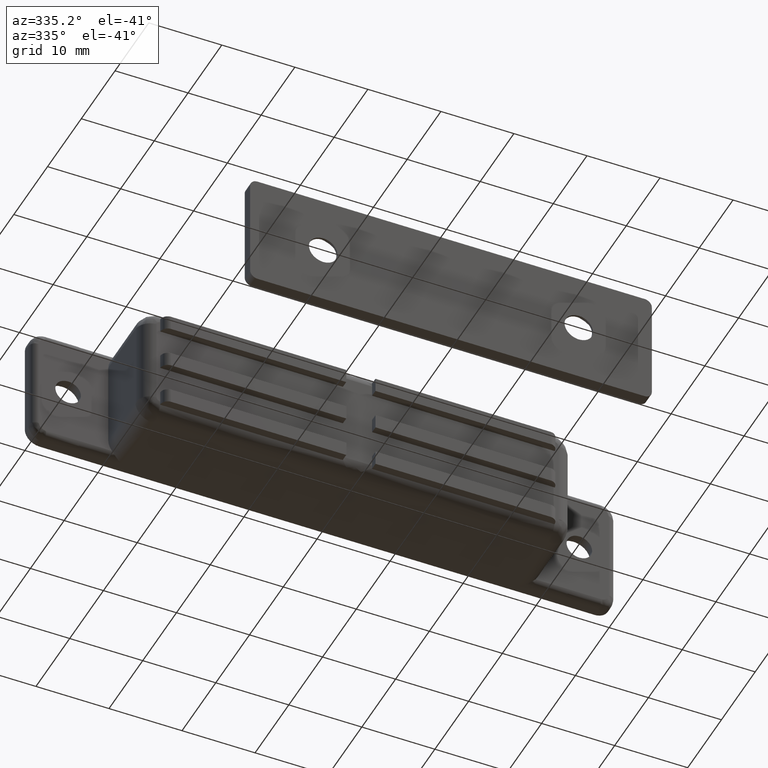
[diagram: clean part render]
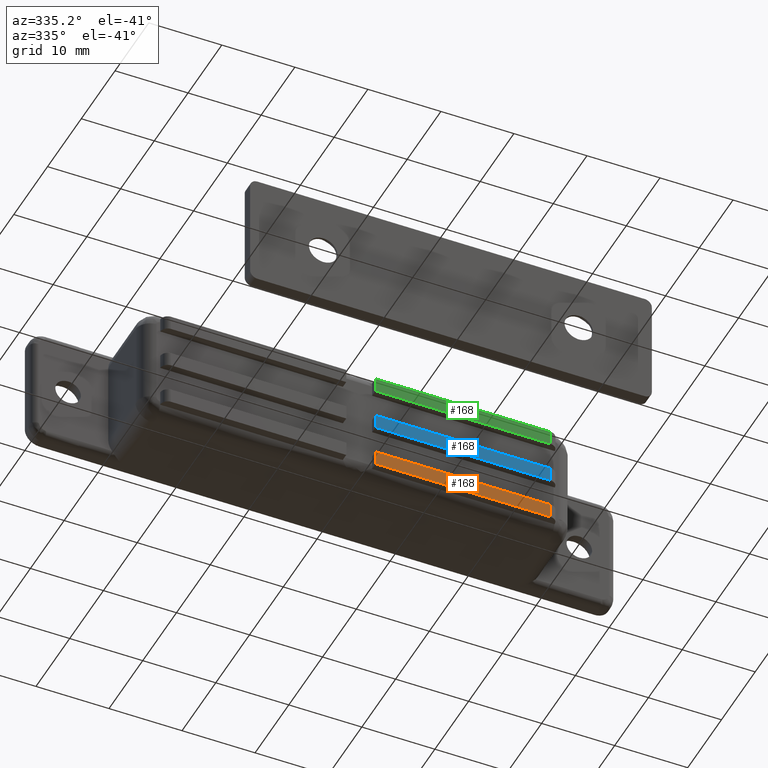
[diagram: same view with three faces highlighted in distinct colors, each labeled with its STEP entity id]
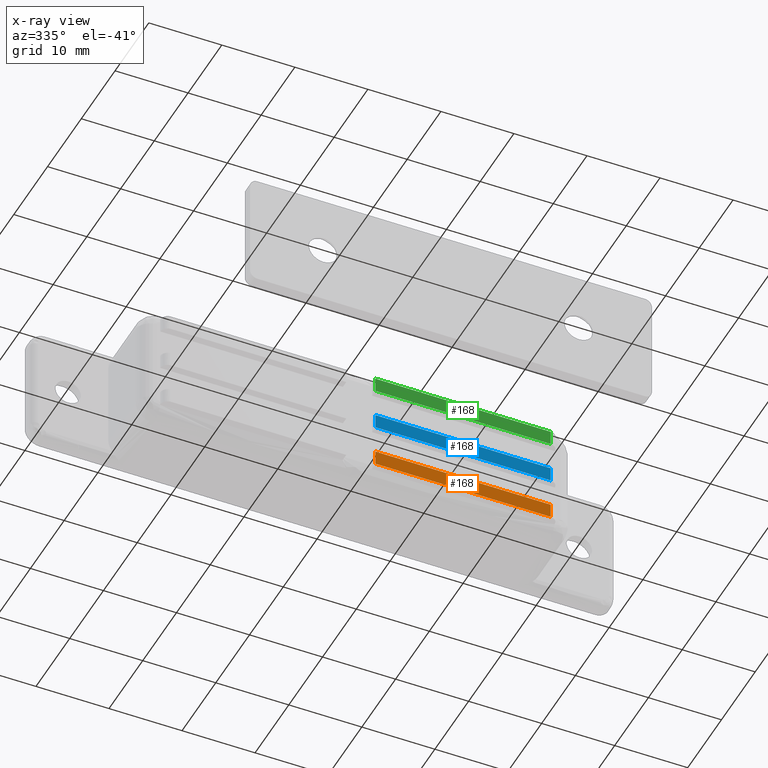
[diagram: x-ray of the same camera — body ghosted, the three highlighted faces saturated]
A machine part, auxiliary view with three faces highlighted in distinct colors.
The next image is the same camera in x-ray (body ghosted, the three faces saturated) — at least one of them is partly hidden behind the body in this view.
Their STEP definitions:

[orange] entity #168 — the highlighted face is a freeform B-spline surface patch.
#60=CARTESIAN_POINT('',(-26.000003000000000,-13.0,7.0));
#61=VERTEX_POINT('',#60);
#82=CARTESIAN_POINT('',(-26.000003000000000,-13.0,5.0));
#83=VERTEX_POINT('',#82);
#97=CARTESIAN_POINT('',(-26.000003000000000,-13.0,7.0));
#98=CARTESIAN_POINT('',(-26.000003000000000,-13.0,5.0));
#99=QUASI_UNIFORM_CURVE('',1,(#97,#98),.UNSPECIFIED.,.F.,.U.);
#100=EDGE_CURVE('',#61,#83,#99,.T.);
#141=CARTESIAN_POINT('',(-27.198804004512770,-13.0,7.099899996123613));
#142=CARTESIAN_POINT('',(-0.801199210063983,-13.0,7.099899996123613));
#143=CARTESIAN_POINT('',(-27.198804004512770,-13.0,4.900099950232208));
#144=CARTESIAN_POINT('',(-0.801199210063983,-13.0,4.900099950232208));
#145=B_SPLINE_SURFACE_WITH_KNOTS('',1,1,((#141,#143),(#142,#144)),.UNSPECIFIED.,.F.,.F.,.U.,(2,2),(2,2),(0.0,26.397604794448782),(0.0,2.199800045891405),.UNSPECIFIED.);
#146=CARTESIAN_POINT('',(-2.0,-13.0,7.0));
#147=VERTEX_POINT('',#146);
#148=CARTESIAN_POINT('',(-2.0,-13.0,7.0));
#149=CARTESIAN_POINT('',(-26.000003000000000,-13.0,7.0));
#150=QUASI_UNIFORM_CURVE('',1,(#148,#149),.UNSPECIFIED.,.F.,.U.);
#151=EDGE_CURVE('',#147,#61,#150,.T.);
#152=ORIENTED_EDGE('',*,*,#151,.T.);
#153=ORIENTED_EDGE('',*,*,#100,.T.);
#154=CARTESIAN_POINT('',(-2.0,-13.0,5.0));
#155=VERTEX_POINT('',#154);
#156=CARTESIAN_POINT('',(-26.000003000000000,-13.0,5.0));
#157=CARTESIAN_POINT('',(-2.0,-13.0,5.0));
#158=QUASI_UNIFORM_CURVE('',1,(#156,#157),.UNSPECIFIED.,.F.,.U.);
#159=EDGE_CURVE('',#83,#155,#158,.T.);
#160=ORIENTED_EDGE('',*,*,#159,.T.);
#161=CARTESIAN_POINT('',(-2.0,-13.0,5.0));
#162=CARTESIAN_POINT('',(-2.0,-13.0,7.0));
#163=QUASI_UNIFORM_CURVE('',1,(#161,#162),.UNSPECIFIED.,.F.,.U.);
#164=EDGE_CURVE('',#155,#147,#163,.T.);
#165=ORIENTED_EDGE('',*,*,#164,.T.);
#166=EDGE_LOOP('',(#152,#153,#160,#165));
#167=FACE_OUTER_BOUND('',#166,.T.);
#168=ADVANCED_FACE('',(#167),#145,.F.);

[blue] entity #168 — the highlighted face is a freeform B-spline surface patch.
#60=CARTESIAN_POINT('',(-26.000003000000000,-13.0,7.0));
#61=VERTEX_POINT('',#60);
#82=CARTESIAN_POINT('',(-26.000003000000000,-13.0,5.0));
#83=VERTEX_POINT('',#82);
#97=CARTESIAN_POINT('',(-26.000003000000000,-13.0,7.0));
#98=CARTESIAN_POINT('',(-26.000003000000000,-13.0,5.0));
#99=QUASI_UNIFORM_CURVE('',1,(#97,#98),.UNSPECIFIED.,.F.,.U.);
#100=EDGE_CURVE('',#61,#83,#99,.T.);
#141=CARTESIAN_POINT('',(-27.198804004512770,-13.0,7.099899996123613));
#142=CARTESIAN_POINT('',(-0.801199210063983,-13.0,7.099899996123613));
#143=CARTESIAN_POINT('',(-27.198804004512770,-13.0,4.900099950232208));
#144=CARTESIAN_POINT('',(-0.801199210063983,-13.0,4.900099950232208));
#145=B_SPLINE_SURFACE_WITH_KNOTS('',1,1,((#141,#143),(#142,#144)),.UNSPECIFIED.,.F.,.F.,.U.,(2,2),(2,2),(0.0,26.397604794448782),(0.0,2.199800045891405),.UNSPECIFIED.);
#146=CARTESIAN_POINT('',(-2.0,-13.0,7.0));
#147=VERTEX_POINT('',#146);
#148=CARTESIAN_POINT('',(-2.0,-13.0,7.0));
#149=CARTESIAN_POINT('',(-26.000003000000000,-13.0,7.0));
#150=QUASI_UNIFORM_CURVE('',1,(#148,#149),.UNSPECIFIED.,.F.,.U.);
#151=EDGE_CURVE('',#147,#61,#150,.T.);
#152=ORIENTED_EDGE('',*,*,#151,.T.);
#153=ORIENTED_EDGE('',*,*,#100,.T.);
#154=CARTESIAN_POINT('',(-2.0,-13.0,5.0));
#155=VERTEX_POINT('',#154);
#156=CARTESIAN_POINT('',(-26.000003000000000,-13.0,5.0));
#157=CARTESIAN_POINT('',(-2.0,-13.0,5.0));
#158=QUASI_UNIFORM_CURVE('',1,(#156,#157),.UNSPECIFIED.,.F.,.U.);
#159=EDGE_CURVE('',#83,#155,#158,.T.);
#160=ORIENTED_EDGE('',*,*,#159,.T.);
#161=CARTESIAN_POINT('',(-2.0,-13.0,5.0));
#162=CARTESIAN_POINT('',(-2.0,-13.0,7.0));
#163=QUASI_UNIFORM_CURVE('',1,(#161,#162),.UNSPECIFIED.,.F.,.U.);
#164=EDGE_CURVE('',#155,#147,#163,.T.);
#165=ORIENTED_EDGE('',*,*,#164,.T.);
#166=EDGE_LOOP('',(#152,#153,#160,#165));
#167=FACE_OUTER_BOUND('',#166,.T.);
#168=ADVANCED_FACE('',(#167),#145,.F.);

[green] entity #168 — the highlighted face is a freeform B-spline surface patch.
#60=CARTESIAN_POINT('',(-26.000003000000000,-13.0,7.0));
#61=VERTEX_POINT('',#60);
#82=CARTESIAN_POINT('',(-26.000003000000000,-13.0,5.0));
#83=VERTEX_POINT('',#82);
#97=CARTESIAN_POINT('',(-26.000003000000000,-13.0,7.0));
#98=CARTESIAN_POINT('',(-26.000003000000000,-13.0,5.0));
#99=QUASI_UNIFORM_CURVE('',1,(#97,#98),.UNSPECIFIED.,.F.,.U.);
#100=EDGE_CURVE('',#61,#83,#99,.T.);
#141=CARTESIAN_POINT('',(-27.198804004512770,-13.0,7.099899996123613));
#142=CARTESIAN_POINT('',(-0.801199210063983,-13.0,7.099899996123613));
#143=CARTESIAN_POINT('',(-27.198804004512770,-13.0,4.900099950232208));
#144=CARTESIAN_POINT('',(-0.801199210063983,-13.0,4.900099950232208));
#145=B_SPLINE_SURFACE_WITH_KNOTS('',1,1,((#141,#143),(#142,#144)),.UNSPECIFIED.,.F.,.F.,.U.,(2,2),(2,2),(0.0,26.397604794448782),(0.0,2.199800045891405),.UNSPECIFIED.);
#146=CARTESIAN_POINT('',(-2.0,-13.0,7.0));
#147=VERTEX_POINT('',#146);
#148=CARTESIAN_POINT('',(-2.0,-13.0,7.0));
#149=CARTESIAN_POINT('',(-26.000003000000000,-13.0,7.0));
#150=QUASI_UNIFORM_CURVE('',1,(#148,#149),.UNSPECIFIED.,.F.,.U.);
#151=EDGE_CURVE('',#147,#61,#150,.T.);
#152=ORIENTED_EDGE('',*,*,#151,.T.);
#153=ORIENTED_EDGE('',*,*,#100,.T.);
#154=CARTESIAN_POINT('',(-2.0,-13.0,5.0));
#155=VERTEX_POINT('',#154);
#156=CARTESIAN_POINT('',(-26.000003000000000,-13.0,5.0));
#157=CARTESIAN_POINT('',(-2.0,-13.0,5.0));
#158=QUASI_UNIFORM_CURVE('',1,(#156,#157),.UNSPECIFIED.,.F.,.U.);
#159=EDGE_CURVE('',#83,#155,#158,.T.);
#160=ORIENTED_EDGE('',*,*,#159,.T.);
#161=CARTESIAN_POINT('',(-2.0,-13.0,5.0));
#162=CARTESIAN_POINT('',(-2.0,-13.0,7.0));
#163=QUASI_UNIFORM_CURVE('',1,(#161,#162),.UNSPECIFIED.,.F.,.U.);
#164=EDGE_CURVE('',#155,#147,#163,.T.);
#165=ORIENTED_EDGE('',*,*,#164,.T.);
#166=EDGE_LOOP('',(#152,#153,#160,#165));
#167=FACE_OUTER_BOUND('',#166,.T.);
#168=ADVANCED_FACE('',(#167),#145,.F.);